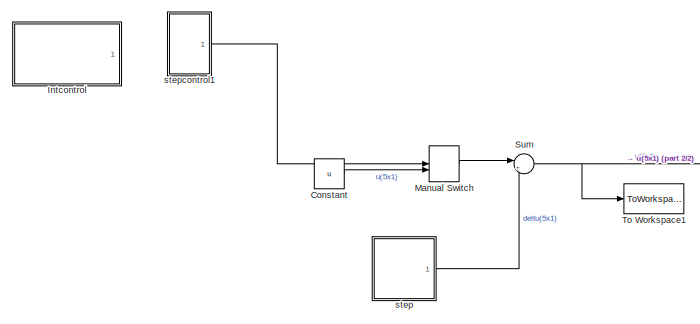
[diagram: root canvas - part 1/2, top left region]
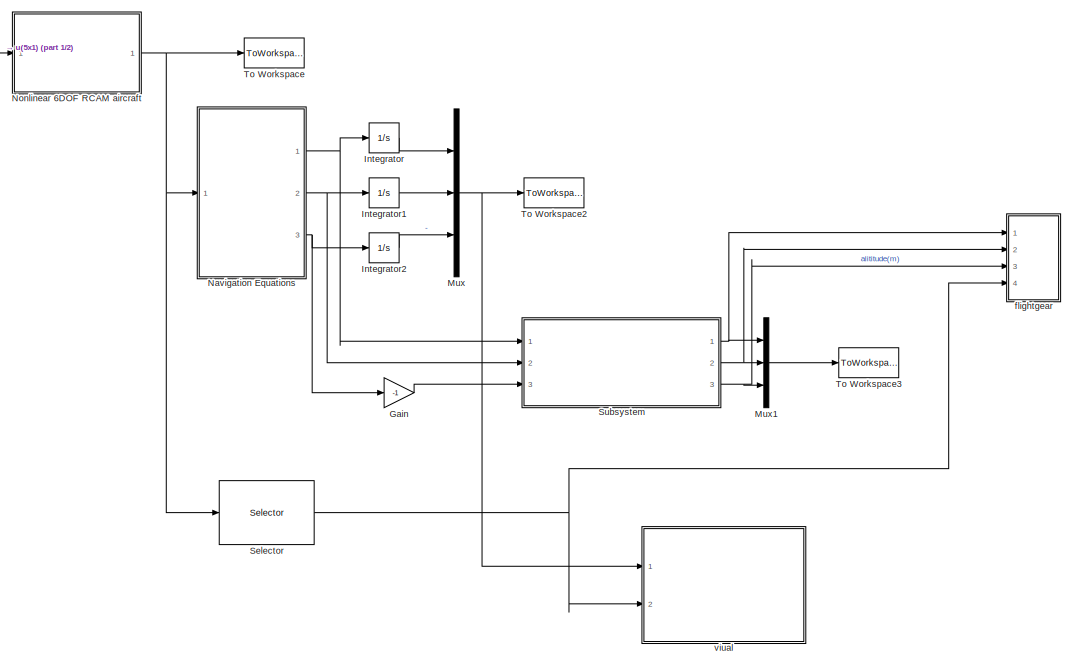
[diagram: root canvas - part 2/2, right side, full height]
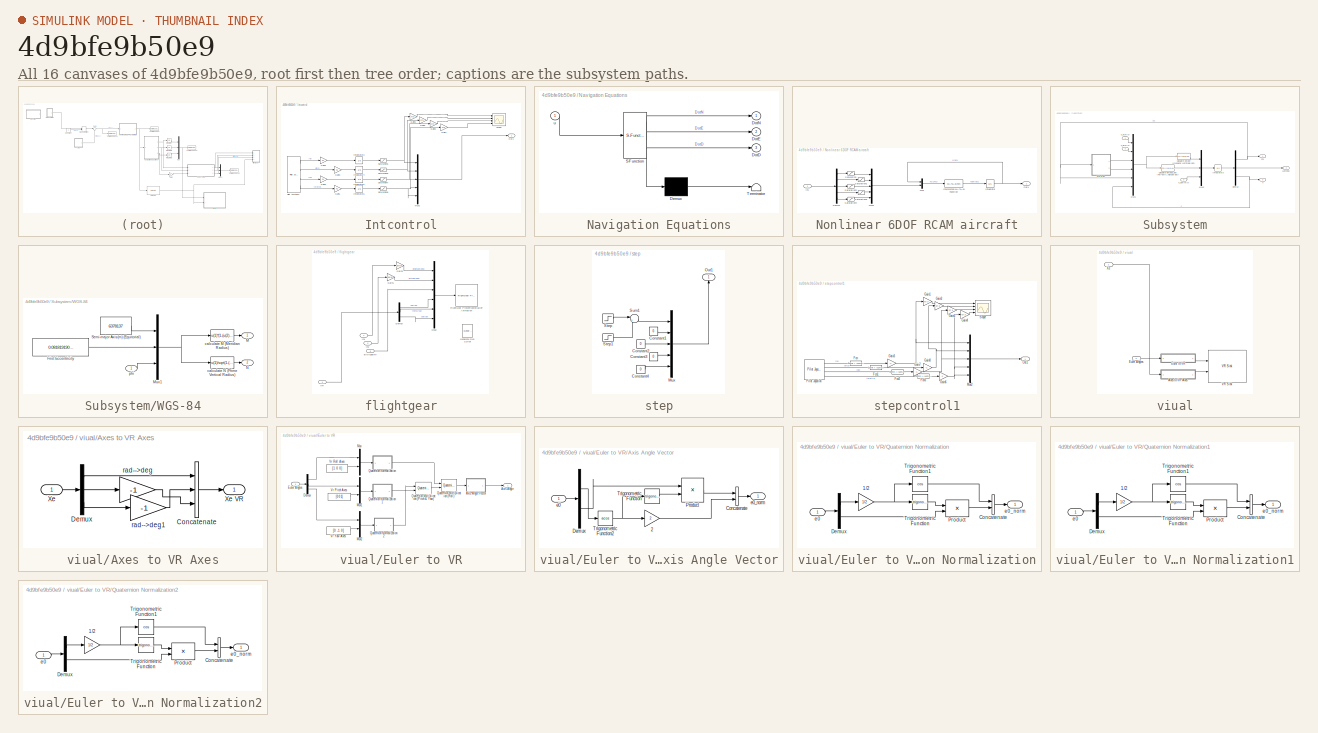
[diagram: thumbnail index - all 16 canvases of the model, root first then tree order]
MODEL slx_4d9bfe9b50e9
KIND model
CONFIG AbsTol = auto
CONFIG EnableMultiTasking = off
CONFIG FixedStep = auto
CONFIG MaxStep = auto
CONFIG MinStep = auto
CONFIG RelTol = 1e-3
CONFIG SampleTimeConstraint = Unconstrained
CONFIG Solver = VariableStepAuto
CONFIG SolverName = VariableStepAuto
CONFIG StartTime = 0.0
CONFIG StopTime = 200
BLOCK [Constant] Constant
  Value = u
BLOCK [Gain] Gain
  Gain = -1
  OutDataTypeStr = Inherit: Inherit via internal rule
  ParamDataTypeStr = Inherit: Inherit via internal rule
  SaturateOnIntegerOverflow = off
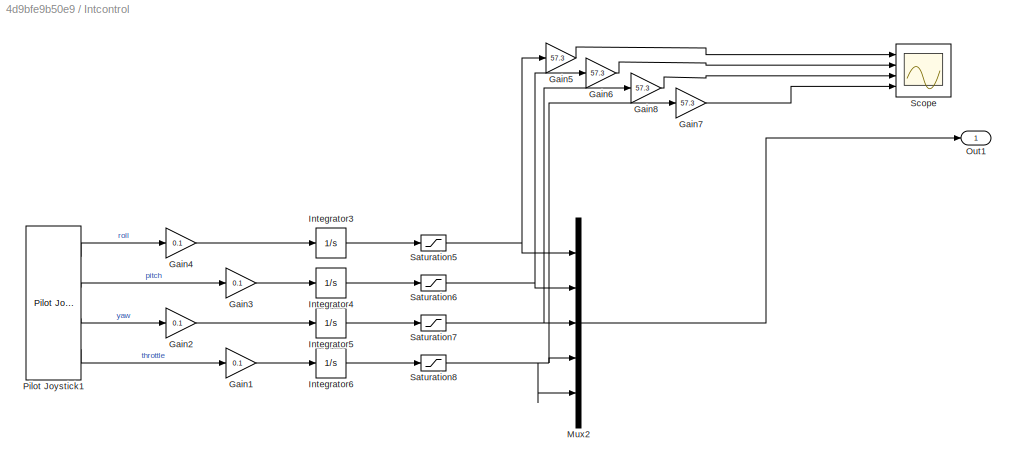
BLOCK [SubSystem] Intcontrol
  Commented = on
  Ports = [0, 1]
  RequestExecContextInheritance = off
  Variant = off
BLOCK [Gain] Intcontrol/Gain1
  Gain = 0.1
  OutDataTypeStr = Inherit: Inherit via internal rule
  ParamDataTypeStr = Inherit: Inherit via internal rule
  SaturateOnIntegerOverflow = off
BLOCK [Gain] Intcontrol/Gain2
  Gain = 0.1
  OutDataTypeStr = Inherit: Inherit via internal rule
  ParamDataTypeStr = Inherit: Inherit via internal rule
  SaturateOnIntegerOverflow = off
BLOCK [Gain] Intcontrol/Gain3
  Gain = 0.1
  OutDataTypeStr = Inherit: Inherit via internal rule
  ParamDataTypeStr = Inherit: Inherit via internal rule
  SaturateOnIntegerOverflow = off
BLOCK [Gain] Intcontrol/Gain4
  Gain = 0.1
  OutDataTypeStr = Inherit: Inherit via internal rule
  ParamDataTypeStr = Inherit: Inherit via internal rule
  SaturateOnIntegerOverflow = off
BLOCK [Gain] Intcontrol/Gain5
  Gain = 57.3
  OutDataTypeStr = Inherit: Inherit via internal rule
  ParamDataTypeStr = Inherit: Inherit via internal rule
  SaturateOnIntegerOverflow = off
BLOCK [Gain] Intcontrol/Gain6
  Gain = 57.3
  OutDataTypeStr = Inherit: Inherit via internal rule
  ParamDataTypeStr = Inherit: Inherit via internal rule
  SaturateOnIntegerOverflow = off
BLOCK [Gain] Intcontrol/Gain7
  Gain = 57.3
  OutDataTypeStr = Inherit: Inherit via internal rule
  ParamDataTypeStr = Inherit: Inherit via internal rule
  SaturateOnIntegerOverflow = off
BLOCK [Gain] Intcontrol/Gain8
  Gain = 57.3
  OutDataTypeStr = Inherit: Inherit via internal rule
  ParamDataTypeStr = Inherit: Inherit via internal rule
  SaturateOnIntegerOverflow = off
BLOCK [Integrator] Intcontrol/Integrator3
  Ports = [1, 1]
BLOCK [Integrator] Intcontrol/Integrator4
  Ports = [1, 1]
BLOCK [Integrator] Intcontrol/Integrator5
  Ports = [1, 1]
BLOCK [Integrator] Intcontrol/Integrator6
  Ports = [1, 1]
BLOCK [Mux] Intcontrol/Mux2
  DisplayOption = bar
  Inputs = 5
  Ports = [5, 1]
BLOCK [Outport] Intcontrol/Out1
  IconDisplay = Port number
BLOCK [Reference] Intcontrol/Pilot Joystick1  REF=aerolibanimutils/Pilot Joystick
  Ports = [0, 4]
  SourceBlock = aerolibanimutils/Pilot Joystick
  SourceType = PilotJoystick
BLOCK [Saturate] Intcontrol/Saturation5
  InputPortMap = u0
  LowerLimit = u1min
  Ports = [1, 1]
  UpperLimit = u1max
BLOCK [Saturate] Intcontrol/Saturation6
  InputPortMap = u0
  LowerLimit = u2min
  Ports = [1, 1]
  UpperLimit = u2max
BLOCK [Saturate] Intcontrol/Saturation7
  InputPortMap = u0
  LowerLimit = u3min
  Ports = [1, 1]
  UpperLimit = u3max
BLOCK [Saturate] Intcontrol/Saturation8
  InputPortMap = u0
  LowerLimit = u4min
  Ports = [1, 1]
  UpperLimit = u4max
BLOCK [Scope] Intcontrol/Scope
  NumInputPorts = 4
  Ports = [4]
  ScopeSpecificationString = Simulink.scopes.TimeScopeBlockCfg('CurrentConfiguration', extmgr.ConfigurationSet(extmgr.Configuration('Core','General UI',true),extmgr.Configuration('Core','Source UI',true),extmgr.Configuration('Sources','WiredSimulink',true,'DataLoggingVariableName','ScopeData1'),extmgr.Configuration('Visuals','Time Domain',true,'SerializedDisplays',{struct('MinYLimReal','-7.59561','MaxYLimReal','7.17705','YLab...<+3445ch>
BLOCK [Integrator] Integrator
  Ports = [1, 1]
BLOCK [Integrator] Integrator1
  Ports = [1, 1]
BLOCK [Integrator] Integrator2
  Ports = [1, 1]
BLOCK [ManualSwitch] Manual Switch
  CurrentSetting = 0
BLOCK [Mux] Mux
  DisplayOption = bar
  Inputs = 3
  Ports = [3, 1]
BLOCK [Mux] Mux1
  DisplayOption = bar
  Inputs = 3
  Ports = [3, 1]
BLOCK [SubSystem] Navigation Equations
  ErrorFcn = Stateflow.Translate.translate
  PermitHierarchicalResolution = ExplicitOnly
  Ports = [1, 3]
  RequestExecContextInheritance = off
  SFBlockType = MATLAB Function
  TreatAsAtomicUnit = on
  Variant = off
BLOCK [Demux] Navigation Equations/ Demux 
  DisplayOption = bar
  Outputs = 1
  Ports = [1, 1]
BLOCK [S-Function] Navigation Equations/ SFunction 
  EnableBusSupport = on
  FunctionName = sf_sfun
  PortCounts = [1 4]
  Ports = [1, 4]
  SFcnIsStateOwnerBlock = off
  SFunctionDeploymentMode = off
  Tag = Stateflow S-Function RCAMSimulation 2
BLOCK [Terminator] Navigation Equations/ Terminator 
BLOCK [Outport] Navigation Equations/DotD
  IconDisplay = Port number
  Port = 3
BLOCK [Outport] Navigation Equations/DotE
  IconDisplay = Port number
  Port = 2
BLOCK [Outport] Navigation Equations/DotN
  IconDisplay = Port number
BLOCK [Inport] Navigation Equations/u
  IconDisplay = Port number
BLOCK [SubSystem] Nonlinear 6DOF RCAM aircraft
  Ports = [1, 1]
  RequestExecContextInheritance = off
  Variant = off
BLOCK [Demux] Nonlinear 6DOF RCAM aircraft/Demux
  DisplayOption = bar
  Outputs = 5
  Ports = [1, 5]
BLOCK [Inport] Nonlinear 6DOF RCAM aircraft/In1
  IconDisplay = Port number
BLOCK [Integrator] Nonlinear 6DOF RCAM aircraft/Integrator
  InitialCondition = x0
  Ports = [1, 1]
BLOCK [MATLABFcn] Nonlinear 6DOF RCAM aircraft/Interpreted MATLAB Function
  MATLABFcn = RCAM_model(u(1:9),u(10:14))
  Ports = [1, 1]
BLOCK [Mux] Nonlinear 6DOF RCAM aircraft/Mux
  DisplayOption = bar
  Inputs = 2
  Ports = [2, 1]
BLOCK [Mux] Nonlinear 6DOF RCAM aircraft/Mux1
  DisplayOption = bar
  Inputs = 5
  Ports = [5, 1]
BLOCK [Outport] Nonlinear 6DOF RCAM aircraft/Out1
  IconDisplay = Port number
BLOCK [Saturate] Nonlinear 6DOF RCAM aircraft/Saturation
  InputPortMap = u0
  LowerLimit = u1min
  Ports = [1, 1]
  UpperLimit = u1max
BLOCK [Saturate] Nonlinear 6DOF RCAM aircraft/Saturation1
  InputPortMap = u0
  LowerLimit = u2min
  Ports = [1, 1]
  UpperLimit = u2max
BLOCK [Saturate] Nonlinear 6DOF RCAM aircraft/Saturation2
  InputPortMap = u0
  LowerLimit = u3min
  Ports = [1, 1]
  UpperLimit = u3max
BLOCK [Saturate] Nonlinear 6DOF RCAM aircraft/Saturation3
  InputPortMap = u0
  LowerLimit = u4min
  Ports = [1, 1]
  UpperLimit = u4max
BLOCK [Saturate] Nonlinear 6DOF RCAM aircraft/Saturation4
  InputPortMap = u0
  LowerLimit = u5min
  Ports = [1, 1]
  UpperLimit = u5max
BLOCK [Selector] Selector
  IndexOptions = Index vector (dialog)
  Indices = [7:9]
  InputPortWidth = 9
  OutputSizes = 1
  Ports = [1, 1]
BLOCK [SubSystem] Subsystem
  Ports = [3, 3]
  RequestExecContextInheritance = off
  Variant = off
BLOCK [Fcn] Subsystem/Calculate lambda_dot (Terrestrial Longitude dot)
  Expr = u(2)/((u(4)+u(6))*cos(u(5)))
BLOCK [Fcn] Subsystem/Calculate phi_dot (Geodetic Lattitude dot)
  Expr = u(1)/(u(3)+u(6))
BLOCK [Demux] Subsystem/Demux
  DisplayOption = bar
  Outputs = 3
  Ports = [1, 3]
BLOCK [Integrator] Subsystem/Integrator3
  InitialCondition = [long0 lat0 atl0]
  Ports = [1, 1]
BLOCK [Outport] Subsystem/Lambda
  IconDisplay = Port number
  Port = 2
BLOCK [Mux] Subsystem/Mux1
  DisplayOption = bar
  Inputs = 6
  Ports = [6, 1]
BLOCK [Mux] Subsystem/Mux2
  DisplayOption = bar
  Inputs = 3
  Ports = [3, 1]
BLOCK [Outport] Subsystem/Phi
  IconDisplay = Port number
BLOCK [Inport] Subsystem/V_E(m//s)
  IconDisplay = Port number
  Port = 2
BLOCK [Inport] Subsystem/V_N(m//s)
  IconDisplay = Port number
BLOCK [SubSystem] Subsystem/WGS-84
  Ports = [1, 2]
  RequestExecContextInheritance = off
  Variant = off
BLOCK [Constant] Subsystem/WGS-84/Frist Eccentricity
  Value = 0.081819190842622
BLOCK [Outport] Subsystem/WGS-84/M
  IconDisplay = Port number
BLOCK [Mux] Subsystem/WGS-84/Mux1
  DisplayOption = bar
  Inputs = 3
  Ports = [3, 1]
BLOCK [Outport] Subsystem/WGS-84/N
  IconDisplay = Port number
  Port = 2
BLOCK [Constant] Subsystem/WGS-84/Semi-major Axis(m) (Equitorial)
  Value = 6378137
BLOCK [Fcn] Subsystem/WGS-84/calculate M (Meridian Radius)
  Expr = u(1)*(1-(u(2)^2))/((1-u(2)^2)*(sin(u(3))^2))^(3/2)
BLOCK [Fcn] Subsystem/WGS-84/calculate N (Prime Vertical Radius)
  Expr = u(1)/sqrt(1-(u(2)^2)*(sin(u(3))^2))
BLOCK [Inport] Subsystem/WGS-84/phi
  IconDisplay = Port number
BLOCK [Outport] Subsystem/h
  IconDisplay = Port number
  Port = 3
BLOCK [Inport] Subsystem/h_dot(m//s)
  IconDisplay = Port number
  Port = 3
BLOCK [Sum] Sum
  IconShape = round
  InputSameDT = off
  Inputs = |++
  OutDataTypeStr = Inherit: Inherit via internal rule
  Ports = [2, 1]
  SaturateOnIntegerOverflow = off
BLOCK [ToWorkspace] To Workspace
  FixptAsFi = on
  MaxDataPoints = inf
  Ports = [1]
  SampleTime = -1
  Save2DSignal = 3-D array (concatenate along third dimension)
  SaveFormat = Timeseries
  VariableName = simX
BLOCK [ToWorkspace] To Workspace1
  FixptAsFi = on
  MaxDataPoints = inf
  Ports = [1]
  SampleTime = -1
  Save2DSignal = 3-D array (concatenate along third dimension)
  SaveFormat = Timeseries
  VariableName = simU
BLOCK [ToWorkspace] To Workspace2
  FixptAsFi = on
  MaxDataPoints = inf
  Ports = [1]
  SampleTime = -1
  Save2DSignal = 3-D array (concatenate along third dimension)
  SaveFormat = Timeseries
  VariableName = simPos_e
BLOCK [ToWorkspace] To Workspace3
  FixptAsFi = on
  MaxDataPoints = inf
  Ports = [1]
  SampleTime = -1
  Save2DSignal = 3-D array (concatenate along third dimension)
  SaveFormat = Timeseries
  VariableName = simPos_G
BLOCK [SubSystem] flightgear
  Commented = on
  Ports = [4]
  RequestExecContextInheritance = off
  Variant = off
BLOCK [Demux] flightgear/Demux
  DisplayOption = bar
  Outputs = 3
  Ports = [1, 3]
BLOCK [Reference] flightgear/FlightGear Preconfigured 6DoF Animation  REF=aerolibfltsims/FlightGear
Preconfigured
6DoF Animation
  Ports = [1]
  SourceBlock = aerolibfltsims/FlightGear\nPreconfigured\n6DoF Animation
  SourceType = FlightGearQuick6DoFAnimation
BLOCK [Gain] flightgear/Gain1
  Gain = 180/pi
  OutDataTypeStr = Inherit: Inherit via internal rule
  ParamDataTypeStr = Inherit: Inherit via internal rule
  SaturateOnIntegerOverflow = off
BLOCK [Gain] flightgear/Gain3
  Gain = 180/pi
  OutDataTypeStr = Inherit: Inherit via internal rule
  ParamDataTypeStr = Inherit: Inherit via internal rule
  SaturateOnIntegerOverflow = off
BLOCK [Reference] flightgear/Generate Run Script  REF=aerolibfltsims/Generate
Run Script
  Ports = []
  SourceBlock = aerolibfltsims/Generate\nRun Script
  SourceType = Generate FlightGear Run Script
BLOCK [Inport] flightgear/In1
  IconDisplay = Port number
BLOCK [Inport] flightgear/In2
  IconDisplay = Port number
  Port = 2
BLOCK [Inport] flightgear/In4
  IconDisplay = Port number
  Port = 4
BLOCK [Mux] flightgear/Mux2
  DisplayOption = bar
  Inputs = 6
  Ports = [6, 1]
BLOCK [Inport] flightgear/alititude(m)
  IconDisplay = Port number
  Port = 3
BLOCK [SubSystem] step
  Commented = on
  Ports = [0, 1]
  RequestExecContextInheritance = off
  Variant = off
BLOCK [Constant] step/Constant1
  Value = 0
BLOCK [Constant] step/Constant2
  Value = 0
BLOCK [Constant] step/Constant3
  Value = 0
BLOCK [Constant] step/Constant4
  Value = 0
BLOCK [Mux] step/Mux
  DisplayOption = bar
  Inputs = 5
  Ports = [5, 1]
BLOCK [Outport] step/Out1
  IconDisplay = Port number
BLOCK [Step] step/Step
  SampleTime = 0
  Time = 30
BLOCK [Step] step/Step1
  After = -1
  SampleTime = 0
  Time = 32
BLOCK [Sum] step/Sum1
  IconShape = round
  InputSameDT = off
  Inputs = |++
  OutDataTypeStr = Inherit: Inherit via internal rule
  Ports = [2, 1]
  SaturateOnIntegerOverflow = off
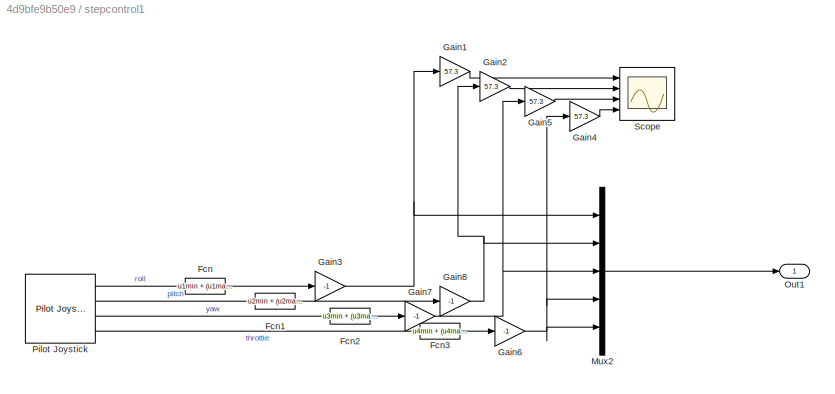
BLOCK [SubSystem] stepcontrol1
  Commented = on
  Ports = [0, 1]
  RequestExecContextInheritance = off
  Variant = off
BLOCK [Fcn] stepcontrol1/Fcn
  Expr = u1min + (u1max-u1min)/2*(u(1)+1)
BLOCK [Fcn] stepcontrol1/Fcn1
  Expr = u2min + (u2max-u2min)/2*(u(1)+1)
BLOCK [Fcn] stepcontrol1/Fcn2
  Expr = u3min + (u3max-u3min)/2*(u(1)+1)
BLOCK [Fcn] stepcontrol1/Fcn3
  Expr = u4min + (u4max-u4min)/2*(u(1)+1)
BLOCK [Gain] stepcontrol1/Gain1
  Gain = 57.3
  OutDataTypeStr = Inherit: Inherit via internal rule
  ParamDataTypeStr = Inherit: Inherit via internal rule
  SaturateOnIntegerOverflow = off
BLOCK [Gain] stepcontrol1/Gain2
  Gain = 57.3
  OutDataTypeStr = Inherit: Inherit via internal rule
  ParamDataTypeStr = Inherit: Inherit via internal rule
  SaturateOnIntegerOverflow = off
BLOCK [Gain] stepcontrol1/Gain3
  Gain = -1
  OutDataTypeStr = Inherit: Inherit via internal rule
  ParamDataTypeStr = Inherit: Inherit via internal rule
  SaturateOnIntegerOverflow = off
BLOCK [Gain] stepcontrol1/Gain4
  Gain = 57.3
  OutDataTypeStr = Inherit: Inherit via internal rule
  ParamDataTypeStr = Inherit: Inherit via internal rule
  SaturateOnIntegerOverflow = off
BLOCK [Gain] stepcontrol1/Gain5
  Gain = 57.3
  OutDataTypeStr = Inherit: Inherit via internal rule
  ParamDataTypeStr = Inherit: Inherit via internal rule
  SaturateOnIntegerOverflow = off
BLOCK [Gain] stepcontrol1/Gain6
  Gain = -1
  OutDataTypeStr = Inherit: Inherit via internal rule
  ParamDataTypeStr = Inherit: Inherit via internal rule
  SaturateOnIntegerOverflow = off
BLOCK [Gain] stepcontrol1/Gain7
  Gain = -1
  OutDataTypeStr = Inherit: Inherit via internal rule
  ParamDataTypeStr = Inherit: Inherit via internal rule
  SaturateOnIntegerOverflow = off
BLOCK [Gain] stepcontrol1/Gain8
  Gain = -1
  OutDataTypeStr = Inherit: Inherit via internal rule
  ParamDataTypeStr = Inherit: Inherit via internal rule
  SaturateOnIntegerOverflow = off
BLOCK [Mux] stepcontrol1/Mux2
  DisplayOption = bar
  Inputs = 5
  Ports = [5, 1]
BLOCK [Outport] stepcontrol1/Out1
  IconDisplay = Port number
BLOCK [Reference] stepcontrol1/Pilot Joystick  REF=aerolibanimutils/Pilot Joystick
  Ports = [0, 4]
  SourceBlock = aerolibanimutils/Pilot Joystick
  SourceType = PilotJoystick
BLOCK [Scope] stepcontrol1/Scope
  NumInputPorts = 4
  Ports = [4]
  ScopeSpecificationString = Simulink.scopes.TimeScopeBlockCfg('CurrentConfiguration', extmgr.ConfigurationSet(extmgr.Configuration('Core','General UI',true),extmgr.Configuration('Core','Source UI',true),extmgr.Configuration('Sources','WiredSimulink',true),extmgr.Configuration('Visuals','Time Domain',true,'SerializedDisplays',{struct('MinYLimReal','-31.2523','MaxYLimReal','31.2523','YLabelReal','','MinYLimMag','0.00000','MaxY...<+3403ch>
BLOCK [SubSystem] viual
  Ports = [2]
  RequestExecContextInheritance = off
  Variant = off
BLOCK [SubSystem] viual/Axes to VR Axes
  Ports = [1, 1]
  RequestExecContextInheritance = off
  Variant = off
BLOCK [Concatenate] viual/Axes to VR Axes/Concatenate
  NumInputs = 3
  Ports = [3, 1]
BLOCK [Demux] viual/Axes to VR Axes/Demux
  Outputs = 3
  Ports = [1, 3]
BLOCK [Inport] viual/Axes to VR Axes/Xe
  IconDisplay = Port number
BLOCK [Outport] viual/Axes to VR Axes/Xe VR
  IconDisplay = Port number
BLOCK [Gain] viual/Axes to VR Axes/rad-->deg
  Gain = -1
BLOCK [Gain] viual/Axes to VR Axes/rad-->deg1
  Gain = -1
BLOCK [Inport] viual/Euler Angles
  IconDisplay = Port number
  Port = 2
BLOCK [SubSystem] viual/Euler to VR
  Ports = [1, 1]
  RequestExecContextInheritance = off
  Variant = off
BLOCK [Outport] viual/Euler to VR/Axis Angle
  IconDisplay = Port number
BLOCK [SubSystem] viual/Euler to VR/Axis Angle Vector
  Ports = [1, 1]
  RequestExecContextInheritance = off
  Variant = off
BLOCK [Gain] viual/Euler to VR/Axis Angle Vector/2
  Gain = 2
BLOCK [Concatenate] viual/Euler to VR/Axis Angle Vector/Concatenate
  Ports = [2, 1]
BLOCK [Demux] viual/Euler to VR/Axis Angle Vector/Demux
  Outputs = [1 3 ]
  Ports = [1, 2]
BLOCK [Product] viual/Euler to VR/Axis Angle Vector/Product
  Inputs = */
  Ports = [2, 1]
  RndMeth = Floor
BLOCK [Trigonometry] viual/Euler to VR/Axis Angle Vector/Trigonometric Function
  Ports = [1, 1]
BLOCK [Trigonometry] viual/Euler to VR/Axis Angle Vector/Trigonometric Function2
  Operator = acos
  Ports = [1, 1]
BLOCK [Inport] viual/Euler to VR/Axis Angle Vector/e0
  IconDisplay = Port number
BLOCK [Outport] viual/Euler to VR/Axis Angle Vector/e0_norm
  IconDisplay = Port number
BLOCK [Demux] viual/Euler to VR/Demux
  Outputs = 3
  Ports = [1, 3]
BLOCK [Inport] viual/Euler to VR/Euler Angles
  IconDisplay = Port number
BLOCK [Mux] viual/Euler to VR/Mux
  DisplayOption = bar
  Inputs = 2
  Ports = [2, 1]
BLOCK [Mux] viual/Euler to VR/Mux1
  DisplayOption = bar
  Inputs = 2
  Ports = [2, 1]
BLOCK [Mux] viual/Euler to VR/Mux2
  DisplayOption = bar
  Inputs = 2
  Ports = [2, 1]
BLOCK [Reference] viual/Euler to VR/Quaternion Multiplication (Pitch & Yaw)  REF=aerolibutil/Quaternion
Multiplication
  Ports = [2, 1]
  SourceBlock = aerolibutil/Quaternion\nMultiplication
  SourceType = Quaternion Multiplication
BLOCK [Reference] viual/Euler to VR/Quaternion Multiplication (Roll)  REF=aerolibutil/Quaternion
Multiplication
  Ports = [2, 1]
  SourceBlock = aerolibutil/Quaternion\nMultiplication
  SourceType = Quaternion Multiplication
BLOCK [SubSystem] viual/Euler to VR/Quaternion Normalization
  Ports = [1, 1]
  RequestExecContextInheritance = off
  Variant = off
BLOCK [Gain] viual/Euler to VR/Quaternion Normalization/1//2
  Gain = 1/2
BLOCK [Concatenate] viual/Euler to VR/Quaternion Normalization/Concatenate
  Ports = [2, 1]
BLOCK [Demux] viual/Euler to VR/Quaternion Normalization/Demux
  Outputs = [1 3]
  Ports = [1, 2]
BLOCK [Product] viual/Euler to VR/Quaternion Normalization/Product
  Ports = [2, 1]
  RndMeth = Floor
BLOCK [Trigonometry] viual/Euler to VR/Quaternion Normalization/Trigonometric Function
  Ports = [1, 1]
BLOCK [Trigonometry] viual/Euler to VR/Quaternion Normalization/Trigonometric Function1
  Operator = cos
  Ports = [1, 1]
BLOCK [Inport] viual/Euler to VR/Quaternion Normalization/e0
  IconDisplay = Port number
BLOCK [Outport] viual/Euler to VR/Quaternion Normalization/e0_norm
  IconDisplay = Port number
BLOCK [SubSystem] viual/Euler to VR/Quaternion Normalization1
  Ports = [1, 1]
  RequestExecContextInheritance = off
  Variant = off
BLOCK [Gain] viual/Euler to VR/Quaternion Normalization1/1//2
  Gain = 1/2
BLOCK [Concatenate] viual/Euler to VR/Quaternion Normalization1/Concatenate
  Ports = [2, 1]
BLOCK [Demux] viual/Euler to VR/Quaternion Normalization1/Demux
  Outputs = [1 3]
  Ports = [1, 2]
BLOCK [Product] viual/Euler to VR/Quaternion Normalization1/Product
  Ports = [2, 1]
  RndMeth = Floor
BLOCK [Trigonometry] viual/Euler to VR/Quaternion Normalization1/Trigonometric Function
  Ports = [1, 1]
BLOCK [Trigonometry] viual/Euler to VR/Quaternion Normalization1/Trigonometric Function1
  Operator = cos
  Ports = [1, 1]
BLOCK [Inport] viual/Euler to VR/Quaternion Normalization1/e0
  IconDisplay = Port number
BLOCK [Outport] viual/Euler to VR/Quaternion Normalization1/e0_norm
  IconDisplay = Port number
BLOCK [SubSystem] viual/Euler to VR/Quaternion Normalization2
  Ports = [1, 1]
  RequestExecContextInheritance = off
  Variant = off
BLOCK [Gain] viual/Euler to VR/Quaternion Normalization2/1//2
  Gain = 1/2
BLOCK [Concatenate] viual/Euler to VR/Quaternion Normalization2/Concatenate
  Ports = [2, 1]
BLOCK [Demux] viual/Euler to VR/Quaternion Normalization2/Demux
  Outputs = [1 3]
  Ports = [1, 2]
BLOCK [Product] viual/Euler to VR/Quaternion Normalization2/Product
  Ports = [2, 1]
  RndMeth = Floor
BLOCK [Trigonometry] viual/Euler to VR/Quaternion Normalization2/Trigonometric Function
  Ports = [1, 1]
BLOCK [Trigonometry] viual/Euler to VR/Quaternion Normalization2/Trigonometric Function1
  Operator = cos
  Ports = [1, 1]
BLOCK [Inport] viual/Euler to VR/Quaternion Normalization2/e0
  IconDisplay = Port number
BLOCK [Outport] viual/Euler to VR/Quaternion Normalization2/e0_norm
  IconDisplay = Port number
BLOCK [Constant] viual/Euler to VR/Vr Pitch Axes
  Value = [0 0 1]
BLOCK [Constant] viual/Euler to VR/Vr Roll Axes
  Value = [1 0 0]
BLOCK [Constant] viual/Euler to VR/Vr Yaw Axes
  Value = [0 -1 0]
BLOCK [Reference] viual/VR Sink  REF=vrlib/VR Sink
  InstantiateOnLoad = on
  Ports = [2]
  SourceBlock = vrlib/VR Sink
  SourceType = Virtual Reality Sink
BLOCK [Inport] viual/Xe
  IconDisplay = Port number
LINE Constant:1 -> Manual Switch:2
LINE Gain:1 -> Subsystem:3
LINE Intcontrol/Gain1:1 -> Intcontrol/Integrator6:1
LINE Intcontrol/Gain2:1 -> Intcontrol/Integrator5:1
LINE Intcontrol/Gain3:1 -> Intcontrol/Integrator4:1
LINE Intcontrol/Gain4:1 -> Intcontrol/Integrator3:1
LINE Intcontrol/Gain5:1 -> Intcontrol/Scope:1
LINE Intcontrol/Gain6:1 -> Intcontrol/Scope:2
LINE Intcontrol/Gain7:1 -> Intcontrol/Scope:4
LINE Intcontrol/Gain8:1 -> Intcontrol/Scope:3
LINE Intcontrol/Integrator3:1 -> Intcontrol/Saturation5:1
LINE Intcontrol/Integrator4:1 -> Intcontrol/Saturation6:1
LINE Intcontrol/Integrator5:1 -> Intcontrol/Saturation7:1
LINE Intcontrol/Integrator6:1 -> Intcontrol/Saturation8:1
LINE Intcontrol/Mux2:1 -> Intcontrol/Out1:1
LINE Intcontrol/Pilot Joystick1:1 -> Intcontrol/Gain4:1
LINE Intcontrol/Pilot Joystick1:2 -> Intcontrol/Gain3:1
LINE Intcontrol/Pilot Joystick1:3 -> Intcontrol/Gain2:1
LINE Intcontrol/Pilot Joystick1:4 -> Intcontrol/Gain1:1
NET Intcontrol/Saturation5:1 -> Intcontrol/Gain5:1, Intcontrol/Mux2:1
NET Intcontrol/Saturation6:1 -> Intcontrol/Gain6:1, Intcontrol/Mux2:2
NET Intcontrol/Saturation7:1 -> Intcontrol/Gain8:1, Intcontrol/Mux2:3
NET Intcontrol/Saturation8:1 -> Intcontrol/Gain7:1, Intcontrol/Mux2:4, Intcontrol/Mux2:5
LINE Integrator1:1 -> Mux:2
LINE Integrator2:1 -> Mux:3
LINE Integrator:1 -> Mux:1
LINE Manual Switch:1 -> Sum:1
LINE Mux1:1 -> To Workspace3:1
NET Mux:1 -> To Workspace2:1, viual:1
NET Navigation Equations:1 -> Integrator:1, Subsystem:1
NET Navigation Equations:2 -> Integrator1:1, Subsystem:2
NET Navigation Equations:3 -> Gain:1, Integrator2:1
LINE Nonlinear 6DOF RCAM aircraft/Demux:1 -> Nonlinear 6DOF RCAM aircraft/Saturation:1
LINE Nonlinear 6DOF RCAM aircraft/Demux:2 -> Nonlinear 6DOF RCAM aircraft/Saturation1:1
LINE Nonlinear 6DOF RCAM aircraft/Demux:3 -> Nonlinear 6DOF RCAM aircraft/Saturation2:1
LINE Nonlinear 6DOF RCAM aircraft/Demux:4 -> Nonlinear 6DOF RCAM aircraft/Saturation3:1
LINE Nonlinear 6DOF RCAM aircraft/Demux:5 -> Nonlinear 6DOF RCAM aircraft/Saturation4:1
LINE Nonlinear 6DOF RCAM aircraft/In1:1 -> Nonlinear 6DOF RCAM aircraft/Demux:1
NET Nonlinear 6DOF RCAM aircraft/Integrator:1 -> Nonlinear 6DOF RCAM aircraft/Mux:1, Nonlinear 6DOF RCAM aircraft/Out1:1
LINE Nonlinear 6DOF RCAM aircraft/Interpreted MATLAB Function:1 -> Nonlinear 6DOF RCAM aircraft/Integrator:1
LINE Nonlinear 6DOF RCAM aircraft/Mux1:1 -> Nonlinear 6DOF RCAM aircraft/Mux:2
LINE Nonlinear 6DOF RCAM aircraft/Mux:1 -> Nonlinear 6DOF RCAM aircraft/Interpreted MATLAB Function:1
LINE Nonlinear 6DOF RCAM aircraft/Saturation1:1 -> Nonlinear 6DOF RCAM aircraft/Mux1:2
LINE Nonlinear 6DOF RCAM aircraft/Saturation2:1 -> Nonlinear 6DOF RCAM aircraft/Mux1:3
LINE Nonlinear 6DOF RCAM aircraft/Saturation3:1 -> Nonlinear 6DOF RCAM aircraft/Mux1:4
LINE Nonlinear 6DOF RCAM aircraft/Saturation4:1 -> Nonlinear 6DOF RCAM aircraft/Mux1:5
LINE Nonlinear 6DOF RCAM aircraft/Saturation:1 -> Nonlinear 6DOF RCAM aircraft/Mux1:1
NET Nonlinear 6DOF RCAM aircraft:1 -> Navigation Equations:1, Selector:1, To Workspace:1
NET Selector:1 -> flightgear:4, viual:2
LINE Subsystem/Calculate lambda_dot (Terrestrial Longitude dot):1 -> Subsystem/Mux2:2
LINE Subsystem/Calculate phi_dot (Geodetic Lattitude dot):1 -> Subsystem/Mux2:1
NET Subsystem/Demux:1 -> Subsystem/Mux1:5, Subsystem/Phi:1, Subsystem/WGS-84:1
LINE Subsystem/Demux:2 -> Subsystem/Lambda:1
NET Subsystem/Demux:3 -> Subsystem/Mux1:6, Subsystem/h:1
LINE Subsystem/Integrator3:1 -> Subsystem/Demux:1
NET Subsystem/Mux1:1 -> Subsystem/Calculate lambda_dot (Terrestrial Longitude dot):1, Subsystem/Calculate phi_dot (Geodetic Lattitude dot):1
LINE Subsystem/Mux2:1 -> Subsystem/Integrator3:1
LINE Subsystem/V_E(m//s):1 -> Subsystem/Mux1:2
LINE Subsystem/V_N(m//s):1 -> Subsystem/Mux1:1
LINE Subsystem/WGS-84/Frist Eccentricity:1 -> Subsystem/WGS-84/Mux1:2
NET Subsystem/WGS-84/Mux1:1 -> Subsystem/WGS-84/calculate M (Meridian Radius):1, Subsystem/WGS-84/calculate N (Prime Vertical Radius):1
LINE Subsystem/WGS-84/Semi-major Axis(m) (Equitorial):1 -> Subsystem/WGS-84/Mux1:1
LINE Subsystem/WGS-84/calculate M (Meridian Radius):1 -> Subsystem/WGS-84/M:1
LINE Subsystem/WGS-84/calculate N (Prime Vertical Radius):1 -> Subsystem/WGS-84/N:1
LINE Subsystem/WGS-84/phi:1 -> Subsystem/WGS-84/Mux1:3
LINE Subsystem/WGS-84:1 -> Subsystem/Mux1:3
LINE Subsystem/WGS-84:2 -> Subsystem/Mux1:4
LINE Subsystem/h_dot(m//s):1 -> Subsystem/Mux2:3
NET Subsystem:1 -> Mux1:1, flightgear:1
NET Subsystem:2 -> Mux1:2, flightgear:2
NET Subsystem:3 -> Mux1:3, flightgear:3
NET Sum:1 -> Nonlinear 6DOF RCAM aircraft:1, To Workspace1:1
LINE flightgear/Demux:1 -> flightgear/Mux2:4
LINE flightgear/Demux:2 -> flightgear/Mux2:5
LINE flightgear/Demux:3 -> flightgear/Mux2:6
LINE flightgear/Gain1:1 -> flightgear/Mux2:2
LINE flightgear/Gain3:1 -> flightgear/Mux2:1
LINE flightgear/In1:1 -> flightgear/Gain3:1
LINE flightgear/In2:1 -> flightgear/Gain1:1
LINE flightgear/In4:1 -> flightgear/Demux:1
LINE flightgear/Mux2:1 -> flightgear/FlightGear Preconfigured 6DoF Animation:1
LINE flightgear/alititude(m):1 -> flightgear/Mux2:3
LINE step/Constant1:1 -> step/Mux:2
LINE step/Constant2:1 -> step/Mux:3
LINE step/Constant3:1 -> step/Mux:4
LINE step/Constant4:1 -> step/Mux:5
LINE step/Mux:1 -> step/Out1:1
LINE step/Step1:1 -> step/Sum1:2
LINE step/Step:1 -> step/Sum1:1
LINE step/Sum1:1 -> step/Mux:1
LINE step:1 -> Sum:2
LINE stepcontrol1/Fcn1:1 -> stepcontrol1/Gain8:1
LINE stepcontrol1/Fcn2:1 -> stepcontrol1/Gain7:1
LINE stepcontrol1/Fcn3:1 -> stepcontrol1/Gain6:1
LINE stepcontrol1/Fcn:1 -> stepcontrol1/Gain3:1
LINE stepcontrol1/Gain1:1 -> stepcontrol1/Scope:1
LINE stepcontrol1/Gain2:1 -> stepcontrol1/Scope:2
NET stepcontrol1/Gain3:1 -> stepcontrol1/Gain1:1, stepcontrol1/Mux2:1
LINE stepcontrol1/Gain4:1 -> stepcontrol1/Scope:4
LINE stepcontrol1/Gain5:1 -> stepcontrol1/Scope:3
NET stepcontrol1/Gain6:1 -> stepcontrol1/Gain4:1, stepcontrol1/Mux2:4, stepcontrol1/Mux2:5
NET stepcontrol1/Gain7:1 -> stepcontrol1/Gain5:1, stepcontrol1/Mux2:3
NET stepcontrol1/Gain8:1 -> stepcontrol1/Gain2:1, stepcontrol1/Mux2:2
LINE stepcontrol1/Mux2:1 -> stepcontrol1/Out1:1
LINE stepcontrol1/Pilot Joystick:1 -> stepcontrol1/Fcn:1
LINE stepcontrol1/Pilot Joystick:2 -> stepcontrol1/Fcn1:1
LINE stepcontrol1/Pilot Joystick:3 -> stepcontrol1/Fcn2:1
LINE stepcontrol1/Pilot Joystick:4 -> stepcontrol1/Fcn3:1
LINE stepcontrol1:1 -> Manual Switch:1
LINE viual/Axes to VR Axes/Concatenate:1 -> viual/Axes to VR Axes/Xe VR:1
LINE viual/Axes to VR Axes/Demux:1 -> viual/Axes to VR Axes/Concatenate:1
LINE viual/Axes to VR Axes/Demux:2 -> viual/Axes to VR Axes/rad-->deg:1
LINE viual/Axes to VR Axes/Demux:3 -> viual/Axes to VR Axes/rad-->deg1:1
LINE viual/Axes to VR Axes/Xe:1 -> viual/Axes to VR Axes/Demux:1
LINE viual/Axes to VR Axes/rad-->deg1:1 -> viual/Axes to VR Axes/Concatenate:2
LINE viual/Axes to VR Axes/rad-->deg:1 -> viual/Axes to VR Axes/Concatenate:3
LINE viual/Axes to VR Axes:1 -> viual/VR Sink:2
LINE viual/Euler Angles:1 -> viual/Euler to VR:1
LINE viual/Euler to VR/Axis Angle Vector/2:1 -> viual/Euler to VR/Axis Angle Vector/Concatenate:2
LINE viual/Euler to VR/Axis Angle Vector/Concatenate:1 -> viual/Euler to VR/Axis Angle Vector/e0_norm:1
LINE viual/Euler to VR/Axis Angle Vector/Demux:1 -> viual/Euler to VR/Axis Angle Vector/Trigonometric Function2:1
LINE viual/Euler to VR/Axis Angle Vector/Demux:2 -> viual/Euler to VR/Axis Angle Vector/Product:1
LINE viual/Euler to VR/Axis Angle Vector/Product:1 -> viual/Euler to VR/Axis Angle Vector/Concatenate:1
NET viual/Euler to VR/Axis Angle Vector/Trigonometric Function2:1 -> viual/Euler to VR/Axis Angle Vector/2:1, viual/Euler to VR/Axis Angle Vector/Trigonometric Function:1
LINE viual/Euler to VR/Axis Angle Vector/Trigonometric Function:1 -> viual/Euler to VR/Axis Angle Vector/Product:2
LINE viual/Euler to VR/Axis Angle Vector/e0:1 -> viual/Euler to VR/Axis Angle Vector/Demux:1
LINE viual/Euler to VR/Axis Angle Vector:1 -> viual/Euler to VR/Axis Angle:1
LINE viual/Euler to VR/Demux:1 -> viual/Euler to VR/Mux:1
LINE viual/Euler to VR/Demux:2 -> viual/Euler to VR/Mux1:1
LINE viual/Euler to VR/Demux:3 -> viual/Euler to VR/Mux2:1
LINE viual/Euler to VR/Euler Angles:1 -> viual/Euler to VR/Demux:1
LINE viual/Euler to VR/Mux1:1 -> viual/Euler to VR/Quaternion Normalization1:1
LINE viual/Euler to VR/Mux2:1 -> viual/Euler to VR/Quaternion Normalization2:1
LINE viual/Euler to VR/Mux:1 -> viual/Euler to VR/Quaternion Normalization:1
LINE viual/Euler to VR/Quaternion Multiplication (Pitch & Yaw):1 -> viual/Euler to VR/Quaternion Multiplication (Roll):2
LINE viual/Euler to VR/Quaternion Multiplication (Roll):1 -> viual/Euler to VR/Axis Angle Vector:1
NET viual/Euler to VR/Quaternion Normalization/1//2:1 -> viual/Euler to VR/Quaternion Normalization/Trigonometric Function1:1, viual/Euler to VR/Quaternion Normalization/Trigonometric Function:1
LINE viual/Euler to VR/Quaternion Normalization/Concatenate:1 -> viual/Euler to VR/Quaternion Normalization/e0_norm:1
LINE viual/Euler to VR/Quaternion Normalization/Demux:1 -> viual/Euler to VR/Quaternion Normalization/1//2:1
LINE viual/Euler to VR/Quaternion Normalization/Demux:2 -> viual/Euler to VR/Quaternion Normalization/Product:2
LINE viual/Euler to VR/Quaternion Normalization/Product:1 -> viual/Euler to VR/Quaternion Normalization/Concatenate:2
LINE viual/Euler to VR/Quaternion Normalization/Trigonometric Function1:1 -> viual/Euler to VR/Quaternion Normalization/Concatenate:1
LINE viual/Euler to VR/Quaternion Normalization/Trigonometric Function:1 -> viual/Euler to VR/Quaternion Normalization/Product:1
LINE viual/Euler to VR/Quaternion Normalization/e0:1 -> viual/Euler to VR/Quaternion Normalization/Demux:1
NET viual/Euler to VR/Quaternion Normalization1/1//2:1 -> viual/Euler to VR/Quaternion Normalization1/Trigonometric Function1:1, viual/Euler to VR/Quaternion Normalization1/Trigonometric Function:1
LINE viual/Euler to VR/Quaternion Normalization1/Concatenate:1 -> viual/Euler to VR/Quaternion Normalization1/e0_norm:1
LINE viual/Euler to VR/Quaternion Normalization1/Demux:1 -> viual/Euler to VR/Quaternion Normalization1/1//2:1
LINE viual/Euler to VR/Quaternion Normalization1/Demux:2 -> viual/Euler to VR/Quaternion Normalization1/Product:2
LINE viual/Euler to VR/Quaternion Normalization1/Product:1 -> viual/Euler to VR/Quaternion Normalization1/Concatenate:2
LINE viual/Euler to VR/Quaternion Normalization1/Trigonometric Function1:1 -> viual/Euler to VR/Quaternion Normalization1/Concatenate:1
LINE viual/Euler to VR/Quaternion Normalization1/Trigonometric Function:1 -> viual/Euler to VR/Quaternion Normalization1/Product:1
LINE viual/Euler to VR/Quaternion Normalization1/e0:1 -> viual/Euler to VR/Quaternion Normalization1/Demux:1
LINE viual/Euler to VR/Quaternion Normalization1:1 -> viual/Euler to VR/Quaternion Multiplication (Pitch & Yaw):2
NET viual/Euler to VR/Quaternion Normalization2/1//2:1 -> viual/Euler to VR/Quaternion Normalization2/Trigonometric Function1:1, viual/Euler to VR/Quaternion Normalization2/Trigonometric Function:1
LINE viual/Euler to VR/Quaternion Normalization2/Concatenate:1 -> viual/Euler to VR/Quaternion Normalization2/e0_norm:1
LINE viual/Euler to VR/Quaternion Normalization2/Demux:1 -> viual/Euler to VR/Quaternion Normalization2/1//2:1
LINE viual/Euler to VR/Quaternion Normalization2/Demux:2 -> viual/Euler to VR/Quaternion Normalization2/Product:2
LINE viual/Euler to VR/Quaternion Normalization2/Product:1 -> viual/Euler to VR/Quaternion Normalization2/Concatenate:2
LINE viual/Euler to VR/Quaternion Normalization2/Trigonometric Function1:1 -> viual/Euler to VR/Quaternion Normalization2/Concatenate:1
LINE viual/Euler to VR/Quaternion Normalization2/Trigonometric Function:1 -> viual/Euler to VR/Quaternion Normalization2/Product:1
LINE viual/Euler to VR/Quaternion Normalization2/e0:1 -> viual/Euler to VR/Quaternion Normalization2/Demux:1
LINE viual/Euler to VR/Quaternion Normalization2:1 -> viual/Euler to VR/Quaternion Multiplication (Pitch & Yaw):1
LINE viual/Euler to VR/Quaternion Normalization:1 -> viual/Euler to VR/Quaternion Multiplication (Roll):1
LINE viual/Euler to VR/Vr Pitch Axes:1 -> viual/Euler to VR/Mux1:2
LINE viual/Euler to VR/Vr Roll Axes:1 -> viual/Euler to VR/Mux:2
LINE viual/Euler to VR/Vr Yaw Axes:1 -> viual/Euler to VR/Mux2:2
LINE viual/Euler to VR:1 -> viual/VR Sink:1
LINE viual/Xe:1 -> viual/Axes to VR Axes:1
note: NET lines group one-source signal fan-out (src -> all destinations, sorted); 1:1 wires keep LINE
CHART Navigation Equations states=1 transitions=1
  STATE_LABEL 'eML_blk_kernel()'
  STATE_LABEL "SCRIPT:\nfunction [DotN,DotE,DotD] = fcn(u)\nx1 = u(1);\nx2 = u(2);\nx3 = u(3);\nx4 = u(4);\nx5 = u(5);\nx6 = u(6);\nx7 = u(7);\nx8 = u(8);\nx9 = u(9);\n\n\n\n\nc1v = [cos(x9),sin(x9),0;-sin(x9),cos(x9),0;0,0,1];\nc21 = [cos(x8),0,-sin(x8);0,1,0;sin(x8),0,cos(x8)];\ncb2 = [1,0,0;0,cos(x7),sin(x7);0,-sin(x7),cos(x7)];\n\ncbv = cb2*c21*c1v;\ncvb = cbv';\nV_b = [x1,x2,x3]';\nV_e = cvb*V_b ;\nDotN= V_e(1);\nDotE= V_e(2);\nDot...<+10ch>"
